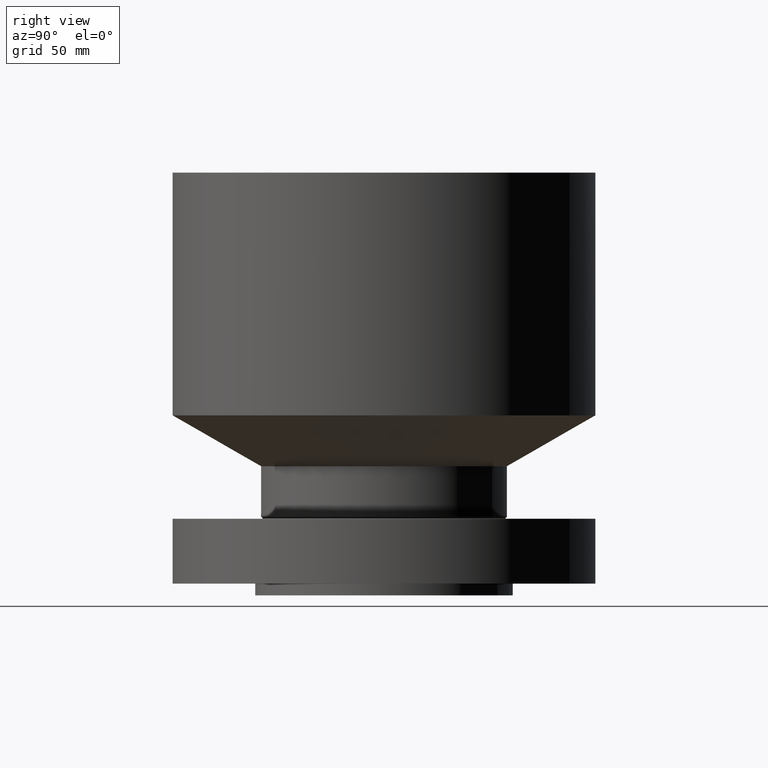
[diagram: clean part render]
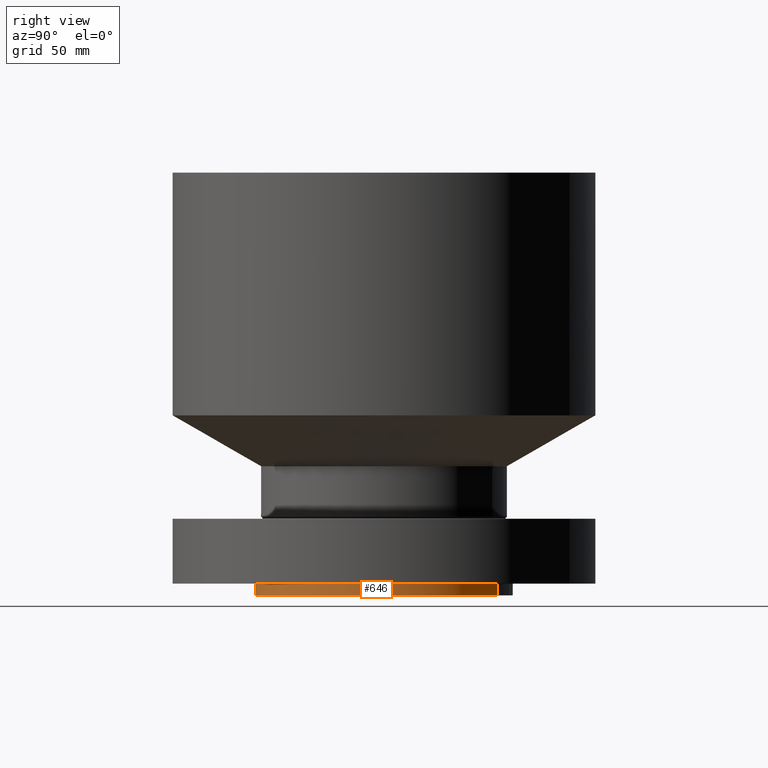
[diagram: same view with one face highlighted and labeled with its STEP entity id]
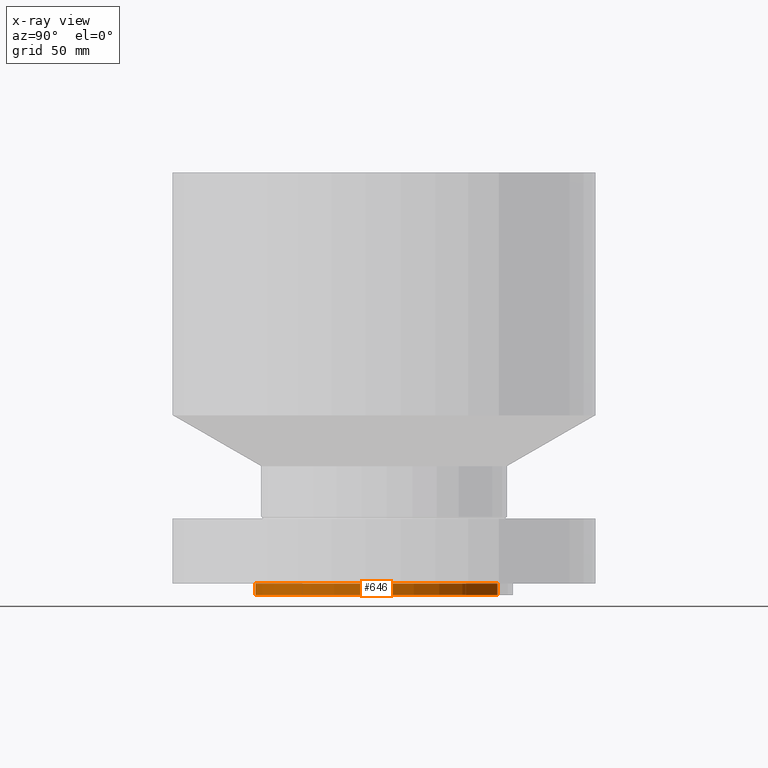
[diagram: x-ray of the same camera — body ghosted, the highlighted face saturated]
A machine part, right view. The second image highlights one B-rep face of the part: STEP entity #646.
The next image is the same camera in x-ray: the body ghosted, the highlighted face saturated — about 0% of this face is hidden behind the body in this view.
In plain terms, the highlighted cylindrical surface (partial cylindrical patch) has radius 69.85 mm, axis along (0, 0, -1).
Its self-contained STEP definition (entity closure, byte-faithful):
#109=AXIS2_PLACEMENT_3D('Circle Axis2P3D',#107,#108,$) ;
#606=AXIS2_PLACEMENT_3D('Circle Axis2P3D',#604,#605,$) ;
#621=AXIS2_PLACEMENT_3D('Cylinder Axis2P3D',#618,#619,#620) ;
#107=CARTESIAN_POINT('Axis2P3D Location',(0.,0.,0.)) ;
#111=CARTESIAN_POINT('Vertex',(1.31842023117,2.41335204521,5.59482469102E-016)) ;
#113=CARTESIAN_POINT('Vertex',(-1.31842023117,-2.41335204521,5.59482469102E-016)) ;
#599=CARTESIAN_POINT('Vertex',(-1.31842023117,-2.41335204521,-0.250000000001)) ;
#601=CARTESIAN_POINT('Vertex',(1.31842023117,2.41335204521,-0.250000000001)) ;
#604=CARTESIAN_POINT('Axis2P3D Location',(0.,0.,-0.250000000001)) ;
#618=CARTESIAN_POINT('Axis2P3D Location',(0.,0.,4.25000000002)) ;
#623=CARTESIAN_POINT('Line Origine',(-1.31842023117,-2.41335204521,-0.125)) ;
#628=CARTESIAN_POINT('Line Origine',(1.31842023117,2.41335204521,-0.125)) ;
#108=DIRECTION('Axis2P3D Direction',(0.,0.,-0.0393700787402)) ;
#605=DIRECTION('Axis2P3D Direction',(0.,0.,-0.0393700787402)) ;
#619=DIRECTION('Axis2P3D Direction',(0.,0.,-0.0393700787402)) ;
#620=DIRECTION('Axis2P3D XDirection',(0.0188750212049,0.0345504945626,0.)) ;
#624=DIRECTION('Vector Direction',(0.,0.,-0.0393700787402)) ;
#629=DIRECTION('Vector Direction',(0.,0.,-0.0393700787402)) ;
#625=VECTOR('Line Direction',#624,0.0393700787402) ;
#630=VECTOR('Line Direction',#629,0.0393700787402) ;
#641=ORIENTED_EDGE('',*,*,#608,.F.) ;
#642=ORIENTED_EDGE('',*,*,#632,.T.) ;
#643=ORIENTED_EDGE('',*,*,#115,.T.) ;
#644=ORIENTED_EDGE('',*,*,#627,.F.) ;
#646=ADVANCED_FACE('PartBody',(#645),#622,.T.) ;
#110=CIRCLE('generated circle',#109,2.75000000001) ;
#607=CIRCLE('generated circle',#606,2.75000000001) ;
#622=CYLINDRICAL_SURFACE('generated cylinder',#621,2.75000000001) ;
#115=EDGE_CURVE('',#112,#114,#110,.T.) ;
#608=EDGE_CURVE('',#602,#600,#607,.T.) ;
#627=EDGE_CURVE('',#600,#114,#626,.F.) ;
#632=EDGE_CURVE('',#602,#112,#631,.F.) ;
#640=EDGE_LOOP('',(#641,#642,#643,#644)) ;
#645=FACE_OUTER_BOUND('',#640,.T.) ;
#626=LINE('Line',#623,#625) ;
#631=LINE('Line',#628,#630) ;
#112=VERTEX_POINT('',#111) ;
#114=VERTEX_POINT('',#113) ;
#600=VERTEX_POINT('',#599) ;
#602=VERTEX_POINT('',#601) ;